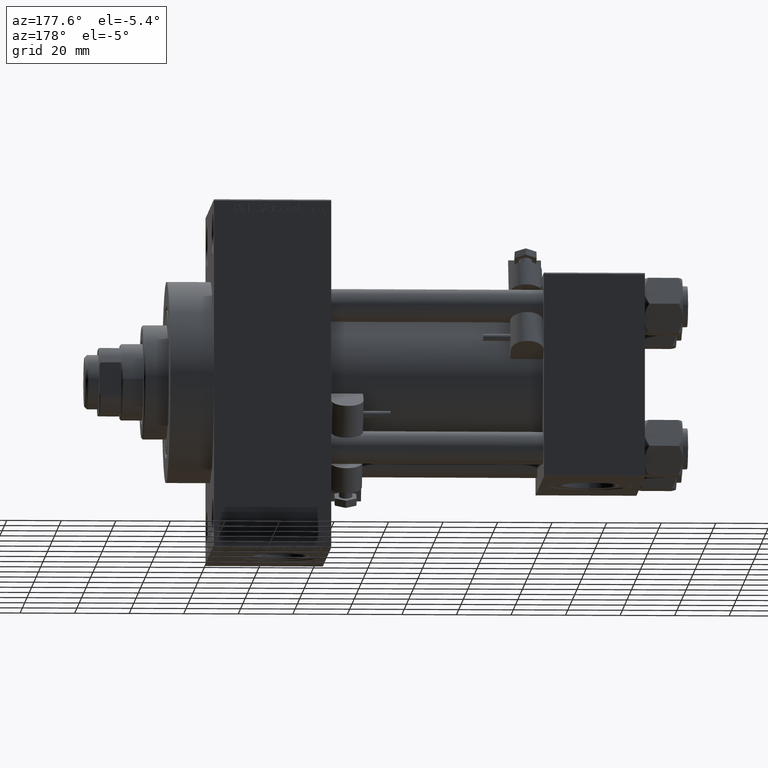
[diagram: clean part render]
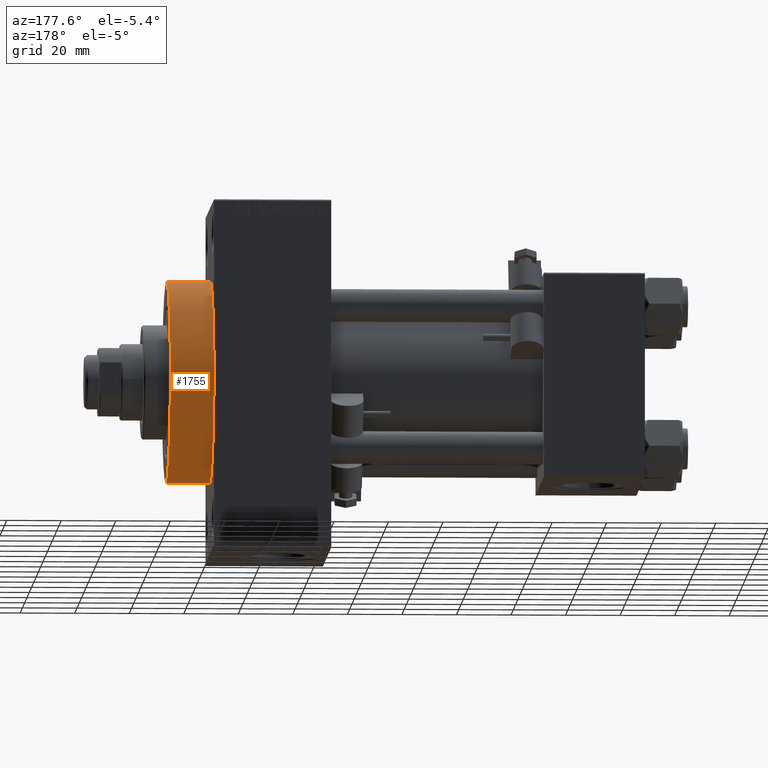
[diagram: same view with one face highlighted and labeled with its STEP entity id]
A machine part, auxiliary view. The second image highlights one B-rep face of the part: STEP entity #1755.
In plain terms, the highlighted cylindrical surface (partial cylindrical patch) has radius 37 mm, axis along (-1, -0, -0).
Its self-contained STEP definition (entity closure, byte-faithful):
#792 = CIRCLE ( 'NONE', #10810, 37.00000000000000000 ) ;
#1755 = ADVANCED_FACE ( 'NONE', ( #6628 ), #30952, .T. ) ;
#2492 = CARTESIAN_POINT ( 'NONE',  ( 174.0000000000000000, 4.531193156845206793E-15, -37.00000000000000000 ) ) ;
#2962 = CARTESIAN_POINT ( 'NONE',  ( 174.0000000000000000, 0.000000000000000000, 0.000000000000000000 ) ) ;
#4033 = CARTESIAN_POINT ( 'NONE',  ( 174.0000000000000000, 0.000000000000000000, 37.00000000000000000 ) ) ;
#6628 = FACE_OUTER_BOUND ( 'NONE', #29653, .T. ) ;
#8720 = CARTESIAN_POINT ( 'NONE',  ( 157.9999999999999716, 0.000000000000000000, 37.00000000000000000 ) ) ;
#9363 = ORIENTED_EDGE ( 'NONE', *, *, #21561, .T. ) ;
#9473 = CARTESIAN_POINT ( 'NONE',  ( 174.0000000000000000, 0.000000000000000000, 0.000000000000000000 ) ) ;
#9598 = VECTOR ( 'NONE', #21574, 1000.000000000000000 ) ;
#9840 = VERTEX_POINT ( 'NONE', #8720 ) ;
#10810 = AXIS2_PLACEMENT_3D ( 'NONE', #41503, #33408, #17434 ) ;
#12075 = VERTEX_POINT ( 'NONE', #2492 ) ;
#13263 = CIRCLE ( 'NONE', #41675, 37.00000000000000000 ) ;
#14470 = DIRECTION ( 'NONE',  ( 0.000000000000000000, 0.000000000000000000, 1.000000000000000000 ) ) ;
#16723 = VERTEX_POINT ( 'NONE', #26216 ) ;
#16807 = DIRECTION ( 'NONE',  ( 0.000000000000000000, 0.000000000000000000, -1.000000000000000000 ) ) ;
#17434 = DIRECTION ( 'NONE',  ( 0.000000000000000000, 0.000000000000000000, -1.000000000000000000 ) ) ;
#18680 = CARTESIAN_POINT ( 'NONE',  ( 174.0000000000000000, 4.531193156845206793E-15, -37.00000000000000000 ) ) ;
#19821 = ORIENTED_EDGE ( 'NONE', *, *, #49937, .F. ) ;
#21069 = LINE ( 'NONE', #45885, #9598 ) ;
#21495 = DIRECTION ( 'NONE',  ( 1.000000000000000000, 0.000000000000000000, 0.000000000000000000 ) ) ;
#21561 = EDGE_CURVE ( 'NONE', #16723, #9840, #792, .T. ) ;
#21574 = DIRECTION ( 'NONE',  ( -1.000000000000000000, -0.000000000000000000, -0.000000000000000000 ) ) ;
#22422 = ORIENTED_EDGE ( 'NONE', *, *, #32760, .F. ) ;
#22866 = LINE ( 'NONE', #18680, #28863 ) ;
#26216 = CARTESIAN_POINT ( 'NONE',  ( 157.9999999999999716, 4.531193156845206793E-15, -37.00000000000000000 ) ) ;
#28863 = VECTOR ( 'NONE', #50591, 1000.000000000000000 ) ;
#29653 = EDGE_LOOP ( 'NONE', ( #22422, #31225, #9363, #19821 ) ) ;
#30952 = CYLINDRICAL_SURFACE ( 'NONE', #40081, 37.00000000000000000 ) ;
#31225 = ORIENTED_EDGE ( 'NONE', *, *, #50231, .T. ) ;
#32760 = EDGE_CURVE ( 'NONE', #12075, #51213, #13263, .T. ) ;
#33408 = DIRECTION ( 'NONE',  ( 1.000000000000000000, 0.000000000000000000, 0.000000000000000000 ) ) ;
#40081 = AXIS2_PLACEMENT_3D ( 'NONE', #2962, #46899, #14470 ) ;
#41503 = CARTESIAN_POINT ( 'NONE',  ( 157.9999999999999716, 0.000000000000000000, 0.000000000000000000 ) ) ;
#41675 = AXIS2_PLACEMENT_3D ( 'NONE', #9473, #21495, #16807 ) ;
#45885 = CARTESIAN_POINT ( 'NONE',  ( 174.0000000000000000, 0.000000000000000000, 37.00000000000000000 ) ) ;
#46899 = DIRECTION ( 'NONE',  ( -1.000000000000000000, -0.000000000000000000, -0.000000000000000000 ) ) ;
#49937 = EDGE_CURVE ( 'NONE', #51213, #9840, #21069, .T. ) ;
#50231 = EDGE_CURVE ( 'NONE', #12075, #16723, #22866, .T. ) ;
#50591 = DIRECTION ( 'NONE',  ( -1.000000000000000000, -0.000000000000000000, -0.000000000000000000 ) ) ;
#51213 = VERTEX_POINT ( 'NONE', #4033 ) ;